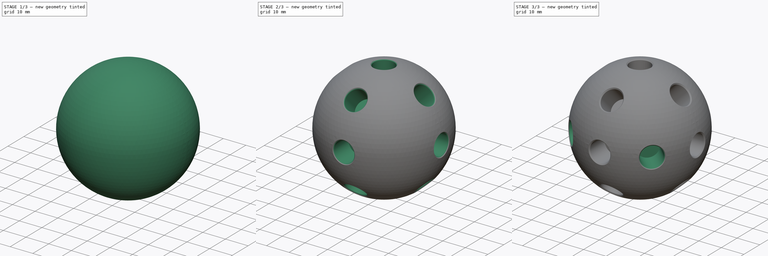
[diagram: build sequence overview — one tinted view per stage of 3, left to right]
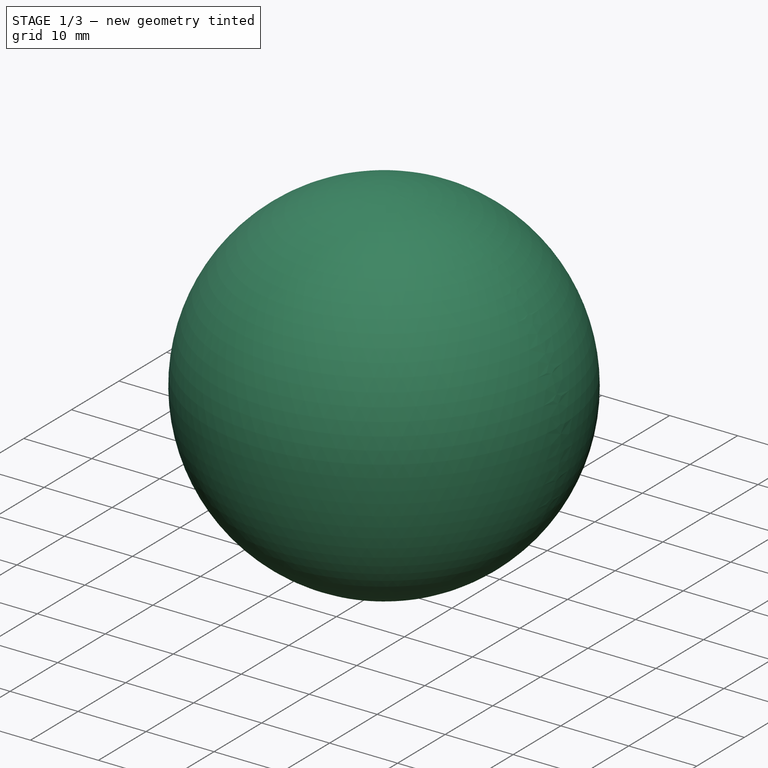
[diagram: stage 1 of 3 — iso view after this stage's code; geometry added in this stage tinted green]
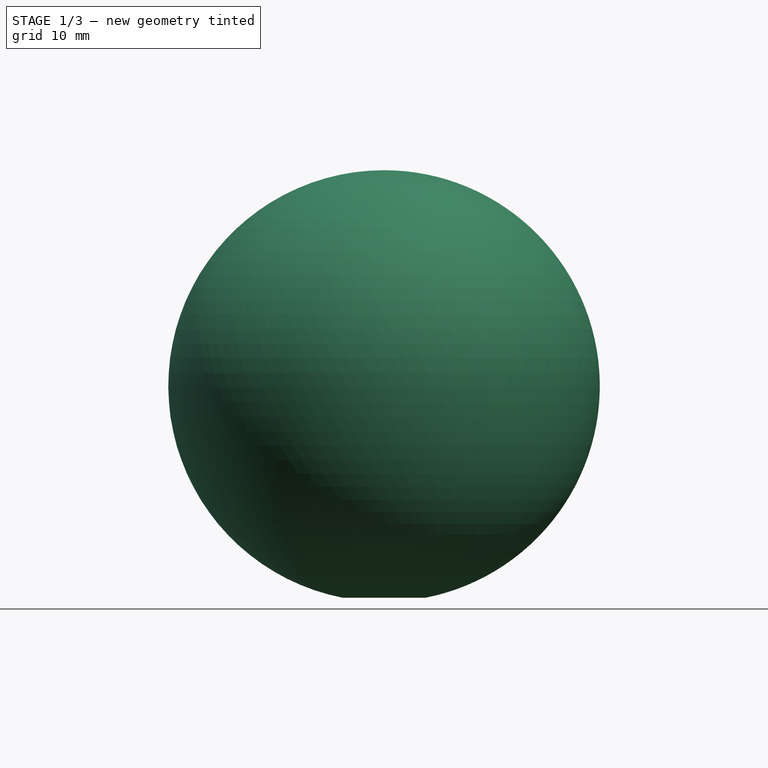
[diagram: stage 1 of 3 — front view after this stage's code; geometry added in this stage tinted green]
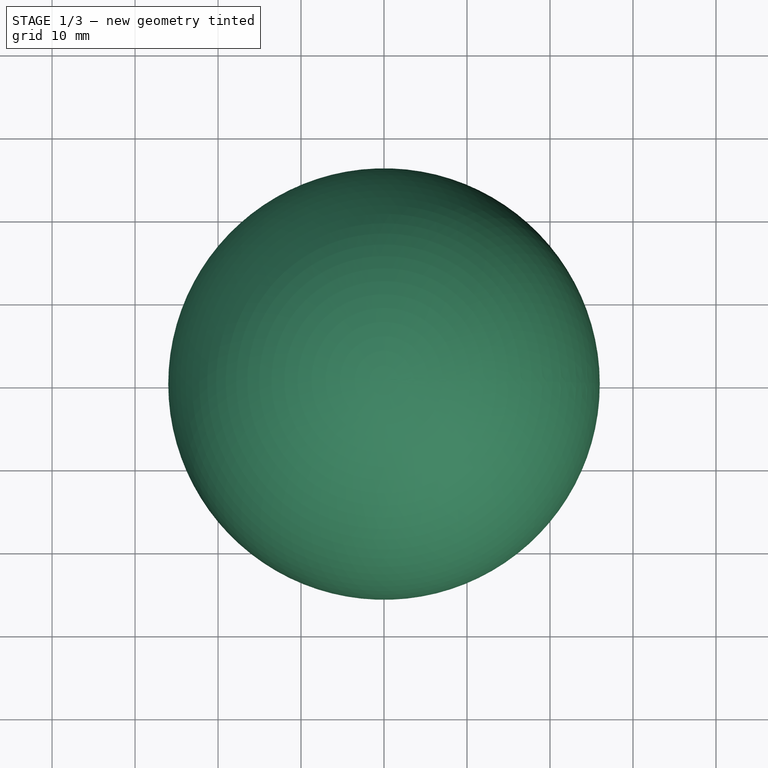
[diagram: stage 1 of 3 — top view after this stage's code; geometry added in this stage tinted green]
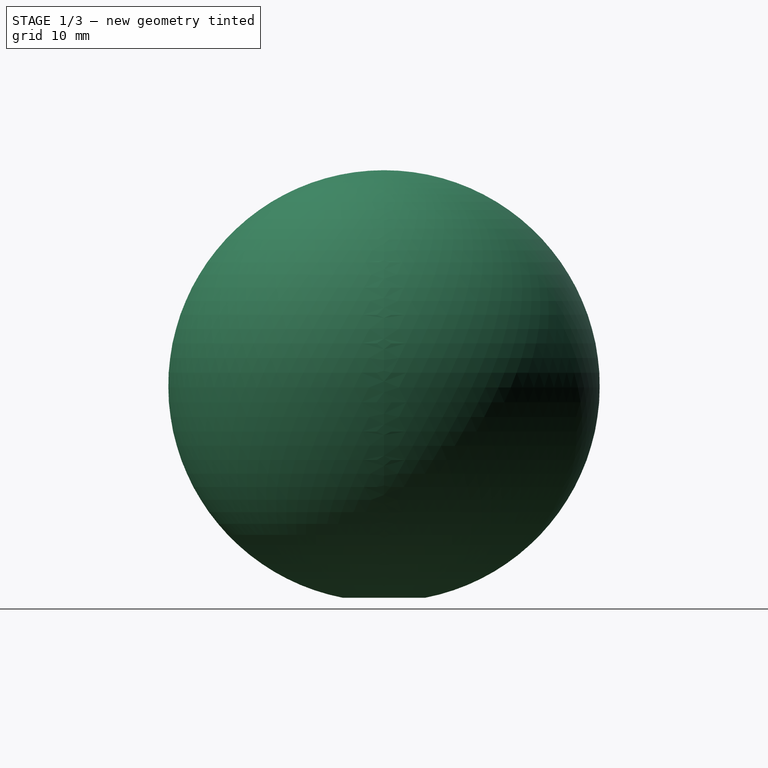
[diagram: stage 1 of 3 — right view after this stage's code; geometry added in this stage tinted green]
FCSTD DOCUMENT  (FreeCAD 1.1R42461 (Git))
Label: 25-SPO-15-TOYBALL_FOR_STRUCTURE
License: Creative Commons Attribution-NonCommercial-ShareAlike 4.0
LicenseURL: https://creativecommons.org/licenses/by-nc-sa/4.0/
objects: PartDesign::PolarPattern×5, Sketcher::SketchObject×3, Part::DatumLine×2, App::Point×1, PartDesign::AdditiveSphere×1, Part::DatumPlane×1, PartDesign::Hole×1, PartDesign::MultiTransform×1, PartDesign::Body×1
note: 25 computed .brp shape members not serialized (recipe doc carries the construction recipe); baked Part::Feature solids carry a one-line shape summary decoded from their .brp

FEATURE [App::Point] Origin001  label="Origine"
  Role = Origin
FEATURE [PartDesign::AdditiveSphere] Sphere
  Angle1 = -90
  Angle2 = 90
  Angle3 = 360
  AttacherType = Attacher::AttachEngine3D
  Radius = 26
  Refine = true
  Suppressed = false
  expr: Radius = 52 / 2
FEATURE [Part::DatumPlane] DatumPlane
  AttachmentSupport = -> [Sphere]
  MapMode = 10
  Placement = pos=(-4.8e-15,0,-26) rot=(1,0,0;3.14159rad)
FEATURE [Sketcher::SketchObject] Sketch
  ArcFitTolerance = 1e-06
  AttachmentSupport = -> [DatumPlane]
  ExternalTypes = [0]
  FullyConstrained = true
  MakeInternals = false
  MapMode = 5
  Placement = pos=(-4.8e-15,0,-26) rot=(1,0,0;3.14159rad)
  sketch-geometry (1):
    g0: GeomPoint X=0 Y=0 Z=0
  constraints (1):
    c: Coincident(g0,g-1)
FEATURE [PartDesign::Hole] Hole
  BaseFeature = -> Sphere
  BaseProfileType = 7
  CustomThreadClearance = 0
  Depth = 10
  DepthType = 0
  Diameter = 9
  DrillForDepth = false
  DrillPoint = 0
  DrillPointAngle = 118
  HoleCutCountersinkAngle = 90
  HoleCutCustomValues = false
  HoleCutDepth = 5.427
  HoleCutDiameter = 10.854
  HoleCutType = 2
  ModelThread = false
  Profile = -> Sketch [Vertex1]
  Refine = true
  Suppressed = false
  Tapered = false
  TaperedAngle = 90
  ThreadClass = 0
  ThreadDepth = 10
  ThreadDepthType = 0
  ThreadDiameter = 9
  ThreadDirection = 0
  ThreadFit = 0
  ThreadSize = 0
  ThreadType = 0
  Threaded = false
  UseCustomThreadClearance = false
  expr: HoleCutDiameter = 9 + 2 * 0.927
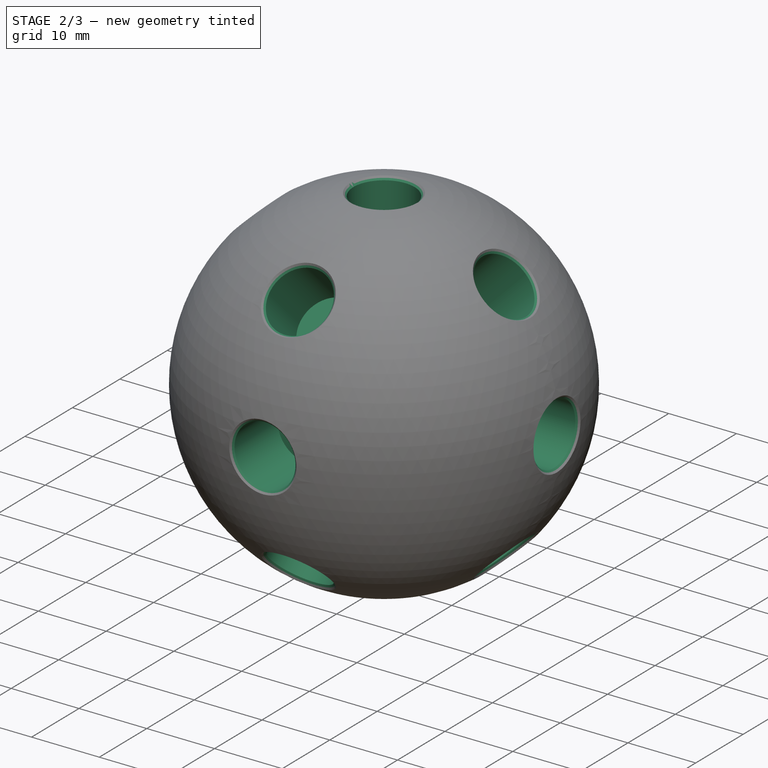
[diagram: stage 2 of 3 — iso view after this stage's code; geometry added in this stage tinted green]
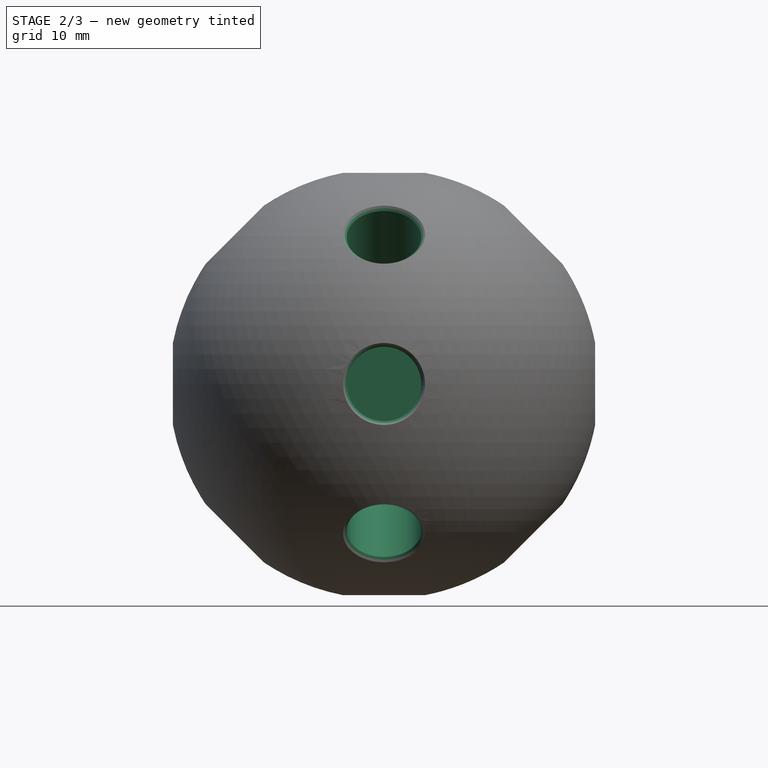
[diagram: stage 2 of 3 — front view after this stage's code; geometry added in this stage tinted green]
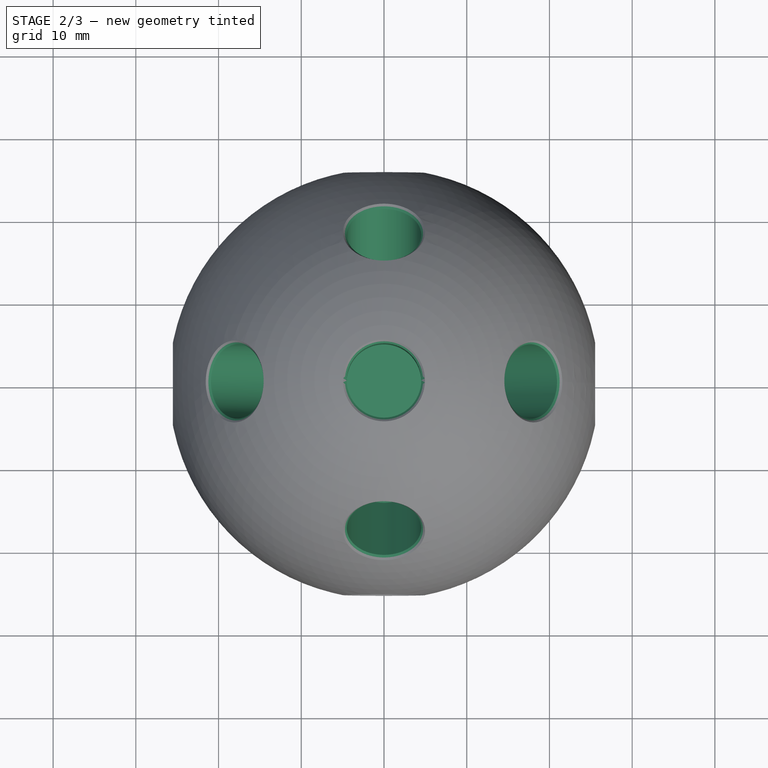
[diagram: stage 2 of 3 — top view after this stage's code; geometry added in this stage tinted green]
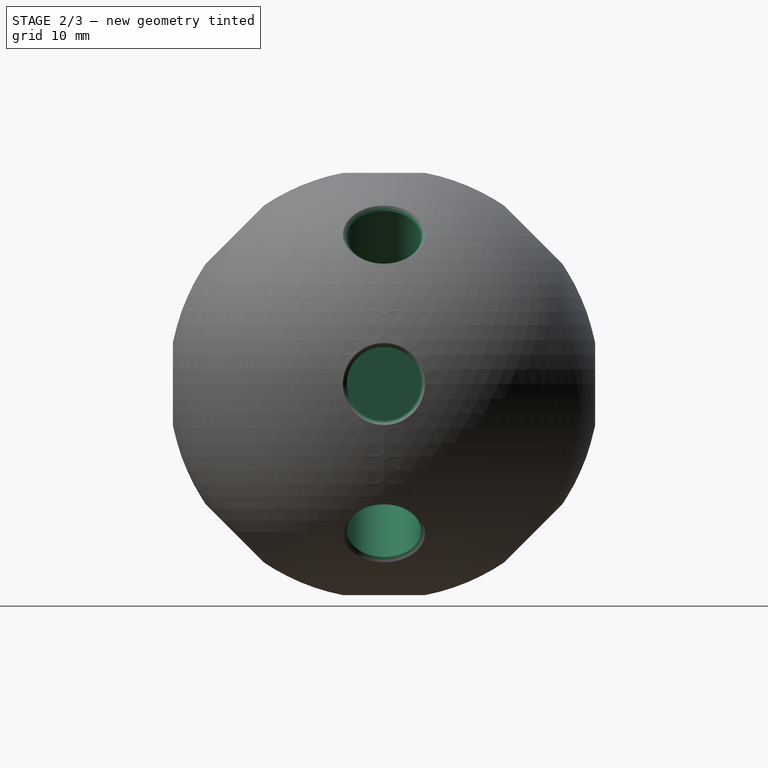
[diagram: stage 2 of 3 — right view after this stage's code; geometry added in this stage tinted green]
FEATURE [Sketcher::SketchObject] Sketch001
  ArcFitTolerance = 1e-06
  AttachmentSupport = -> [Origin]
  ExternalGeometry = -> [DatumPlane]
  ExternalTypes = [0]
  FullyConstrained = true
  MakeInternals = false
  MapMode = 5
  Placement = pos=(0,0,0) rot=(1,0,0;1.5708rad)
  sketch-geometry (1):
    g0: GeomPoint X=0 Y=-16 Z=0
  constraints (3):
    c: PointOnObject(g0,g-2)
    c: DistanceY(g0,g-1) = 16
    c: Distance(g0,g-3) = 10
FEATURE [PartDesign::PolarPattern] PolarPattern
  Angle = 360
  Axis = -> X_Axis
  Mode = 0
  Occurrences = 8
  Offset = 120
  Refine = true
  Suppressed = false
  TransformMode = 0
FEATURE [PartDesign::MultiTransform] MultiTransform
  BaseFeature = -> Hole
  Originals = -> [Hole]
  Refine = true
  Suppressed = false
  TransformMode = 0
  Transformations = -> [PolarPattern]
FEATURE [PartDesign::PolarPattern] PolarPattern001
  Angle = 360
  Axis = -> Y_Axis
  BaseFeature = -> MultiTransform
  Mode = 0
  Occurrences = 8
  Offset = 120
  Originals = -> [Hole]
  Refine = true
  Suppressed = false
  TransformMode = 0
FEATURE [PartDesign::PolarPattern] PolarPattern002
  Angle = 360
  Axis = -> Sketch [N_Axis]
  BaseFeature = -> PolarPattern001
  Mode = 0
  Occurrences = 2
  Offset = 120
  Originals = -> [Hole]
  Refine = true
  Suppressed = false
  TransformMode = 0
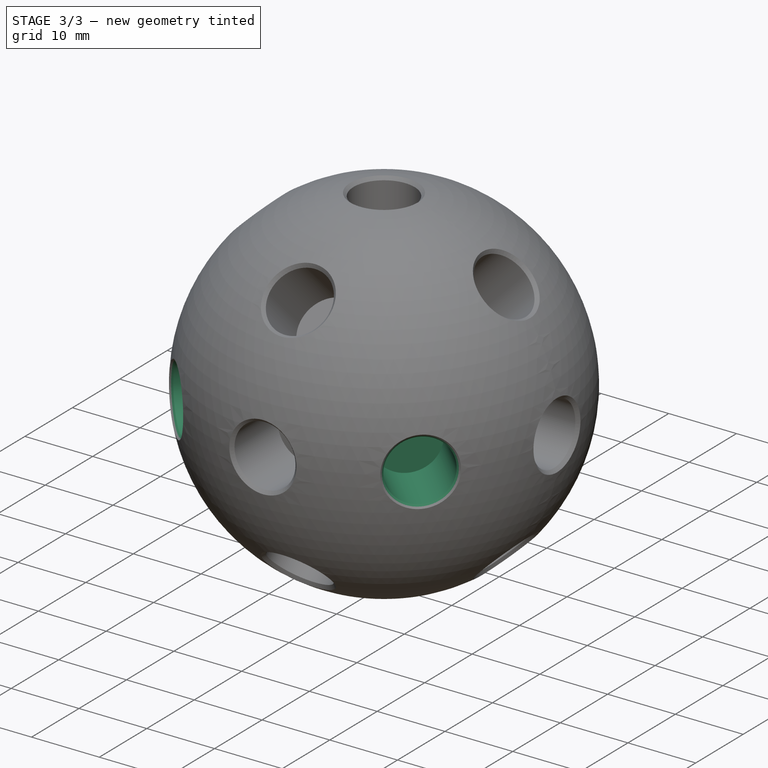
[diagram: stage 3 of 3 — iso view after this stage's code; geometry added in this stage tinted green]
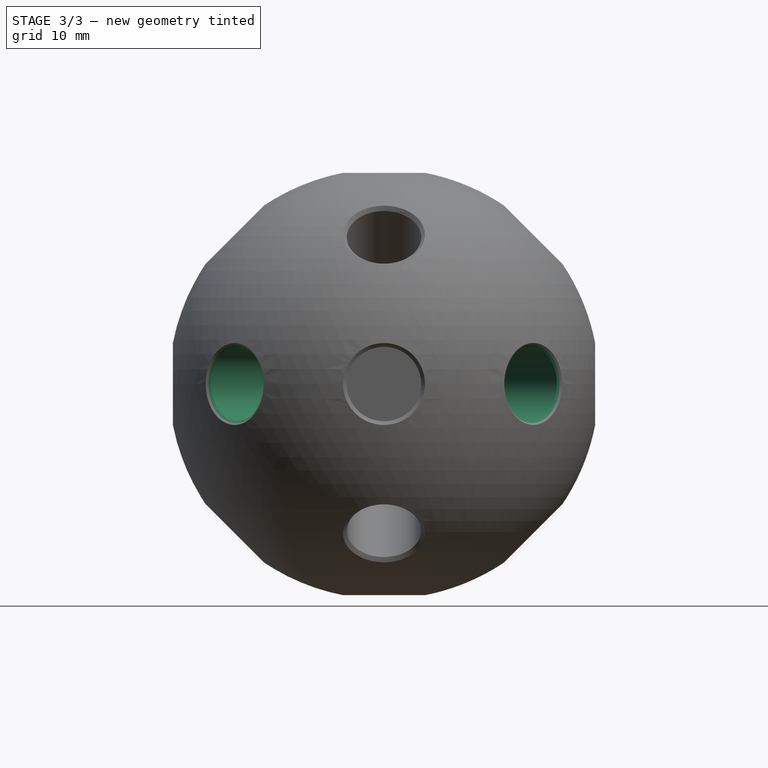
[diagram: stage 3 of 3 — front view after this stage's code; geometry added in this stage tinted green]
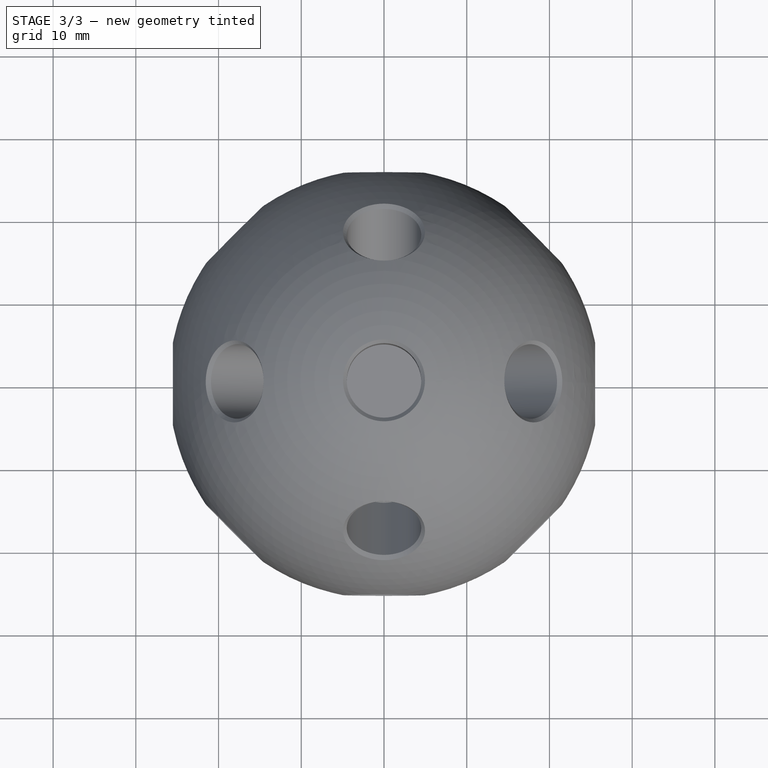
[diagram: stage 3 of 3 — top view after this stage's code; geometry added in this stage tinted green]
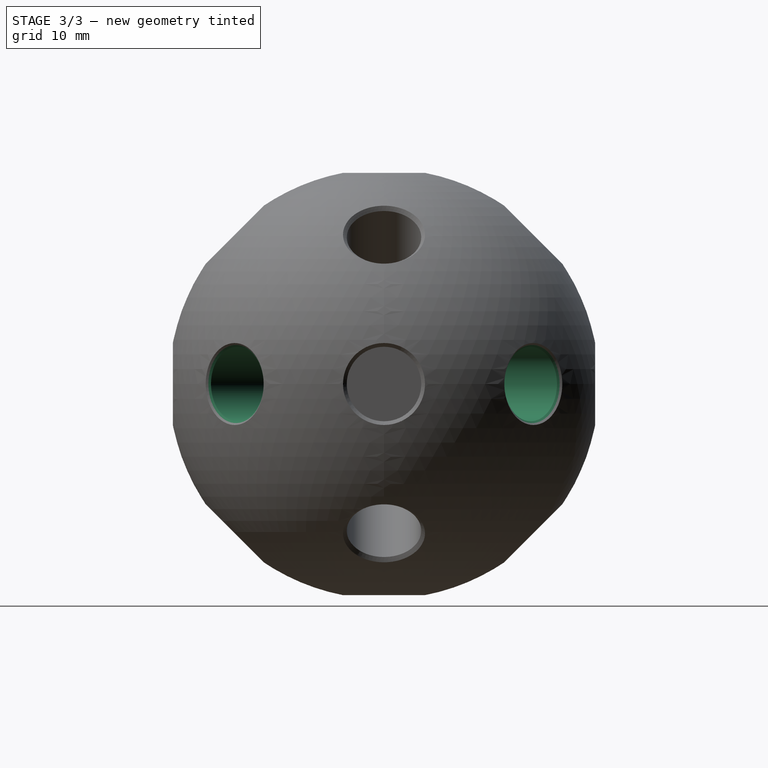
[diagram: stage 3 of 3 — right view after this stage's code; geometry added in this stage tinted green]
FEATURE [Sketcher::SketchObject] Sketch002
  ArcFitTolerance = 1e-06
  AttachmentSupport = -> [Origin]
  ExternalTypes = [0]
  FullyConstrained = true
  MakeInternals = false
  MapMode = 5
  sketch-geometry (2):
    g0: LineSegment StartX=0 StartY=0 StartZ=0 EndX=70.7107 EndY=70.7107 EndZ=0
    g1: LineSegment StartX=0 StartY=0 StartZ=0 EndX=-70.7107 EndY=70.7107 EndZ=0
  constraints (6):
    c: Distance(g0) = 100
    c: Angle(g-1,g0) = 0.785398
    c: Coincident(g0,g-1)
    c: Coincident(g1,g0)
    c: Perpendicular(g0,g1)
    c: Equal(g0,g1)
FEATURE [Part::DatumLine] DatumLine
  AttacherType = Attacher::AttachEngineLine
  AttachmentSupport = -> [Sketch002,Hole]
  MapMode = 24
  Placement = pos=(-2.4e-15,-2.4e-15,0) rot=(0.862856,-0.357407,-0.357407;1.71777rad)
FEATURE [PartDesign::PolarPattern] PolarPattern003
  Angle = 360
  Axis = -> DatumLine
  BaseFeature = -> PolarPattern002
  Mode = 0
  Occurrences = 4
  Offset = 120
  Originals = -> [Hole]
  Refine = true
  Suppressed = false
  TransformMode = 0
FEATURE [Part::DatumLine] DatumLine001
  AttacherType = Attacher::AttachEngineLine
  AttachmentSupport = -> [Sketch002]
  MapMode = 29
  Placement = pos=(0,0,0) rot=(-0.281085,0.678598,0.678598;3.68962rad)
FEATURE [PartDesign::PolarPattern] PolarPattern004
  Angle = 360
  Axis = -> DatumLine001
  BaseFeature = -> PolarPattern003
  Mode = 0
  Occurrences = 4
  Offset = 120
  Originals = -> [Hole]
  Refine = true
  Suppressed = false
  TransformMode = 0
FEATURE [PartDesign::Body] Body  label="Corps"
  AllowCompound = false
  Group = -> [Sphere,DatumPlane,Sketch001,Sketch,Hole,MultiTransform,PolarPattern,PolarPattern001,PolarPattern002,Sketch002,DatumLine,PolarPattern003,DatumLine001,PolarPattern004]
  Origin = -> Origin
  Tip = -> PolarPattern004
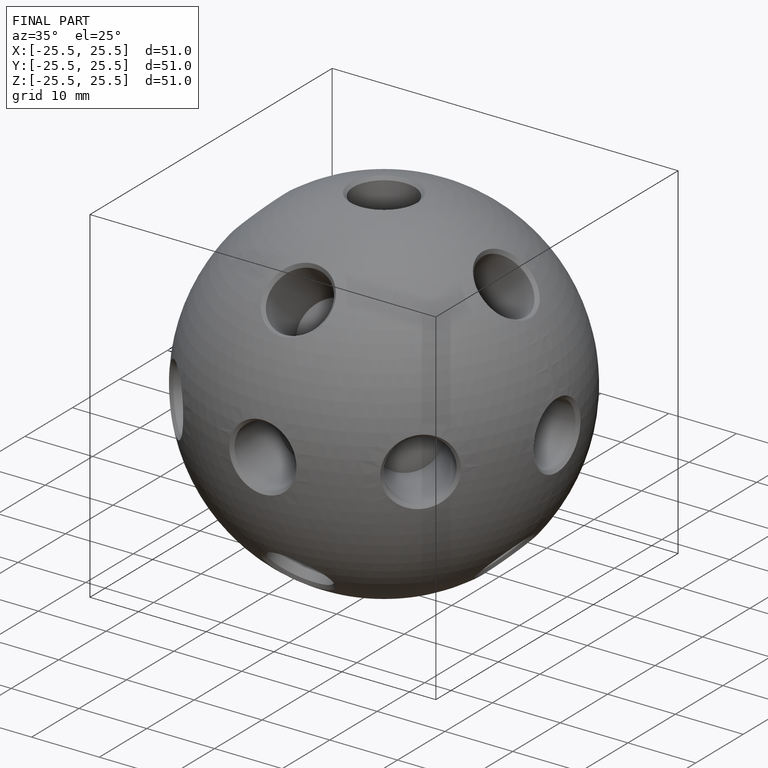
[diagram: finished part — iso view with bounding-box wireframe]
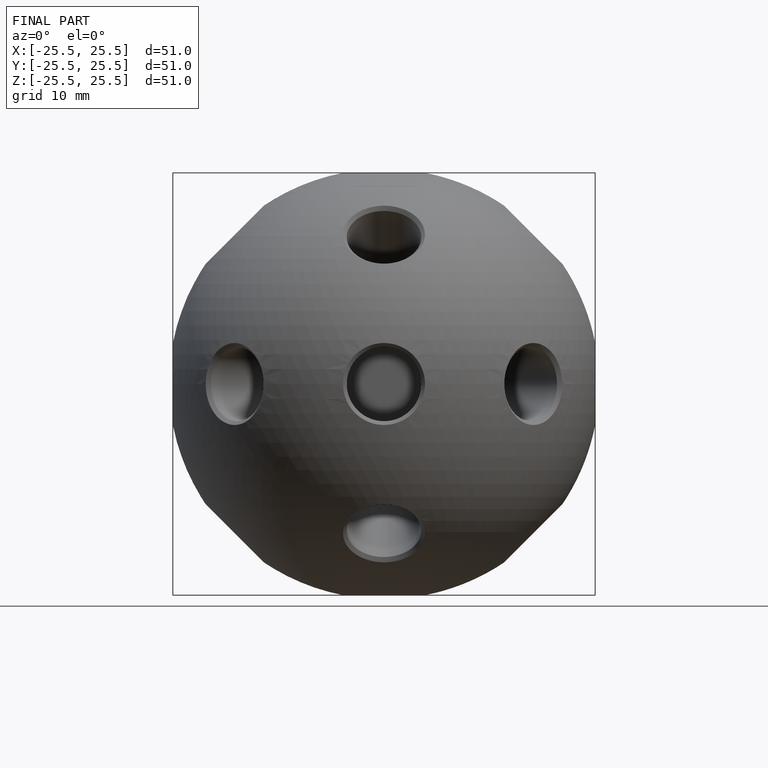
[diagram: finished part — front view with bounding-box wireframe]
